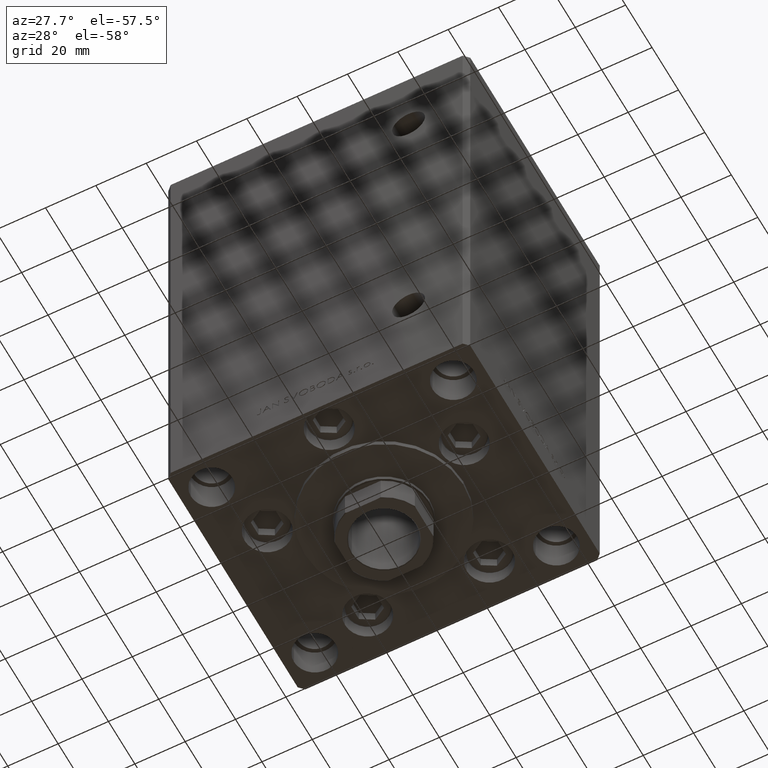
[diagram: clean part render]
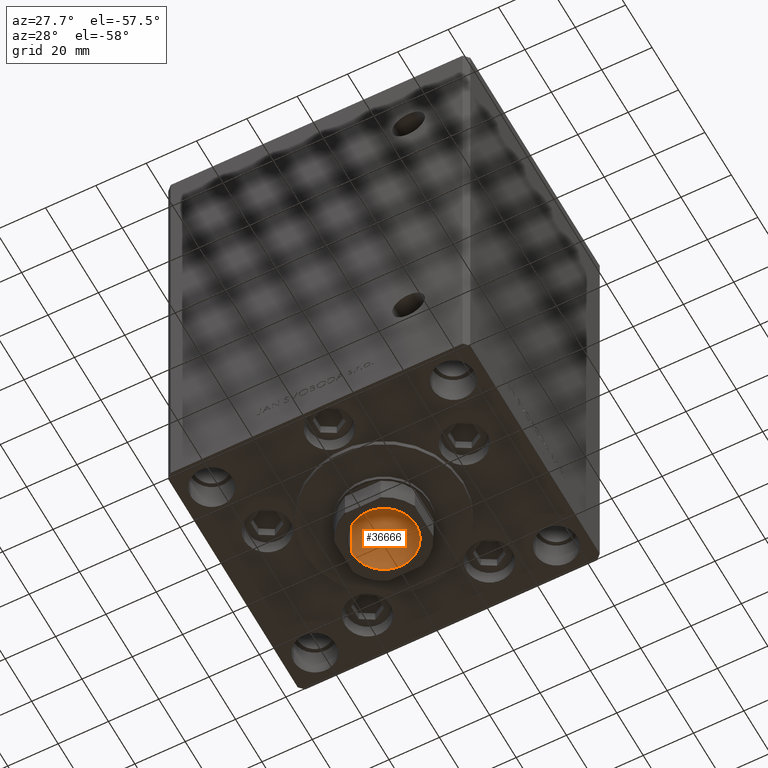
[diagram: same view with one face highlighted and labeled with its STEP entity id]
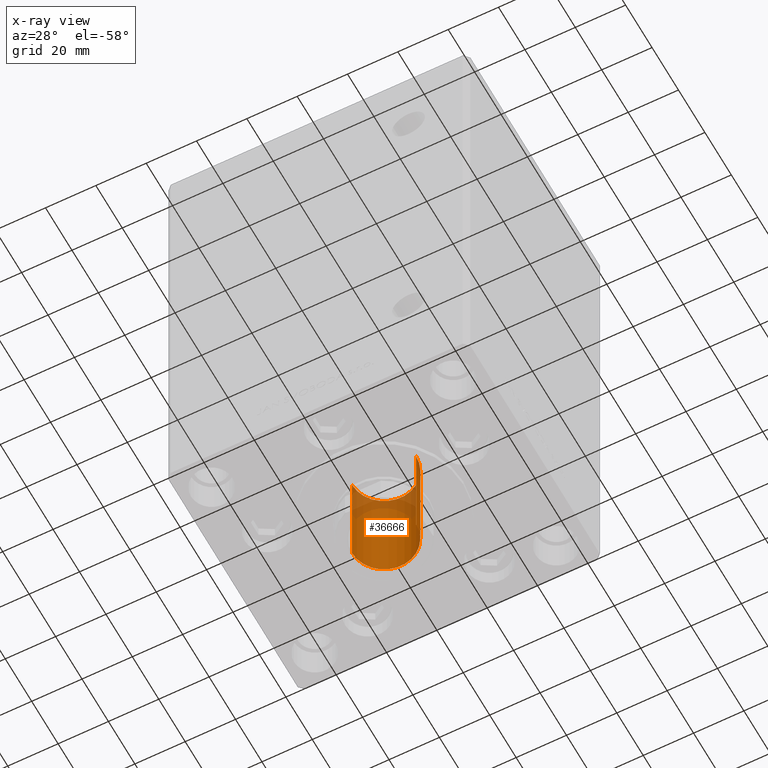
[diagram: x-ray of the same camera — body ghosted, the highlighted face saturated]
A machine part, auxiliary view. The second image highlights one B-rep face of the part: STEP entity #36666.
The next image is the same camera in x-ray: the body ghosted, the highlighted face saturated — about 23% of this face is hidden behind the body in this view.
In plain terms, the highlighted cylindrical surface (edge-blend (fillet) strip) has radius 12.75 mm, axis along (0, 0, -1).
Its self-contained STEP definition (entity closure, byte-faithful):
#882 = VERTEX_POINT ( 'NONE', #31542 ) ;
#1039 = VERTEX_POINT ( 'NONE', #37821 ) ;
#1947 = CARTESIAN_POINT ( 'NONE',  ( 0.000000000000000000, 0.000000000000000000, 168.9499999999999602 ) ) ;
#2251 = DIRECTION ( 'NONE',  ( -0.000000000000000000, -0.000000000000000000, 1.000000000000000000 ) ) ;
#6586 = DIRECTION ( 'NONE',  ( -0.000000000000000000, -0.000000000000000000, 1.000000000000000000 ) ) ;
#7347 = CARTESIAN_POINT ( 'NONE',  ( 0.000000000000000000, 0.000000000000000000, 169.2500000000000000 ) ) ;
#7665 = EDGE_LOOP ( 'NONE', ( #45422, #8120, #13027, #25795 ) ) ;
#8038 = EDGE_CURVE ( 'NONE', #1039, #882, #15120, .T. ) ;
#8120 = ORIENTED_EDGE ( 'NONE', *, *, #49334, .F. ) ;
#9159 = AXIS2_PLACEMENT_3D ( 'NONE', #7347, #6586, #22071 ) ;
#10337 = DIRECTION ( 'NONE',  ( 1.000000000000000000, 0.000000000000000000, 0.000000000000000000 ) ) ;
#13027 = ORIENTED_EDGE ( 'NONE', *, *, #48108, .T. ) ;
#14227 = LINE ( 'NONE', #18031, #25739 ) ;
#15120 = CIRCLE ( 'NONE', #27243, 12.74999999999999467 ) ;
#16471 = DIRECTION ( 'NONE',  ( 0.000000000000000000, 0.000000000000000000, 1.000000000000000000 ) ) ;
#18031 = CARTESIAN_POINT ( 'NONE',  ( -12.74999999999999467, 1.561424668912874519E-15, 169.2500000000000000 ) ) ;
#18399 = EDGE_CURVE ( 'NONE', #31989, #882, #14227, .T. ) ;
#20371 = DIRECTION ( 'NONE',  ( -0.000000000000000000, -0.000000000000000000, 1.000000000000000000 ) ) ;
#20869 = LINE ( 'NONE', #47258, #50002 ) ;
#22071 = DIRECTION ( 'NONE',  ( 1.000000000000000000, 0.000000000000000000, 0.000000000000000000 ) ) ;
#22139 = CARTESIAN_POINT ( 'NONE',  ( -12.74999999999999112, 1.561424668912874125E-15, 124.2500000000000142 ) ) ;
#24133 = CIRCLE ( 'NONE', #25709, 12.74999999999999112 ) ;
#25709 = AXIS2_PLACEMENT_3D ( 'NONE', #33670, #2251, #10337 ) ;
#25739 = VECTOR ( 'NONE', #33506, 1000.000000000000000 ) ;
#25795 = ORIENTED_EDGE ( 'NONE', *, *, #8038, .T. ) ;
#27243 = AXIS2_PLACEMENT_3D ( 'NONE', #1947, #16471, #37182 ) ;
#31542 = CARTESIAN_POINT ( 'NONE',  ( -12.74999999999999467, 1.561424668912874519E-15, 168.9499999999999602 ) ) ;
#31989 = VERTEX_POINT ( 'NONE', #22139 ) ;
#33211 = VERTEX_POINT ( 'NONE', #47912 ) ;
#33506 = DIRECTION ( 'NONE',  ( -0.000000000000000000, -0.000000000000000000, 1.000000000000000000 ) ) ;
#33670 = CARTESIAN_POINT ( 'NONE',  ( 0.000000000000000000, 0.000000000000000000, 124.2500000000000142 ) ) ;
#35743 = FACE_OUTER_BOUND ( 'NONE', #7665, .T. ) ;
#36666 = ADVANCED_FACE ( 'NONE', ( #35743 ), #46655, .F. ) ;
#37182 = DIRECTION ( 'NONE',  ( 1.000000000000000000, 0.000000000000000000, 0.000000000000000000 ) ) ;
#37821 = CARTESIAN_POINT ( 'NONE',  ( 12.74999999999999467, 0.000000000000000000, 168.9499999999999602 ) ) ;
#45422 = ORIENTED_EDGE ( 'NONE', *, *, #18399, .F. ) ;
#46655 = CYLINDRICAL_SURFACE ( 'NONE', #9159, 12.74999999999999467 ) ;
#47258 = CARTESIAN_POINT ( 'NONE',  ( 12.74999999999999467, 0.000000000000000000, 169.2500000000000000 ) ) ;
#47912 = CARTESIAN_POINT ( 'NONE',  ( 12.74999999999999112, 0.000000000000000000, 124.2500000000000142 ) ) ;
#48108 = EDGE_CURVE ( 'NONE', #33211, #1039, #20869, .T. ) ;
#49334 = EDGE_CURVE ( 'NONE', #33211, #31989, #24133, .T. ) ;
#50002 = VECTOR ( 'NONE', #20371, 1000.000000000000000 ) ;